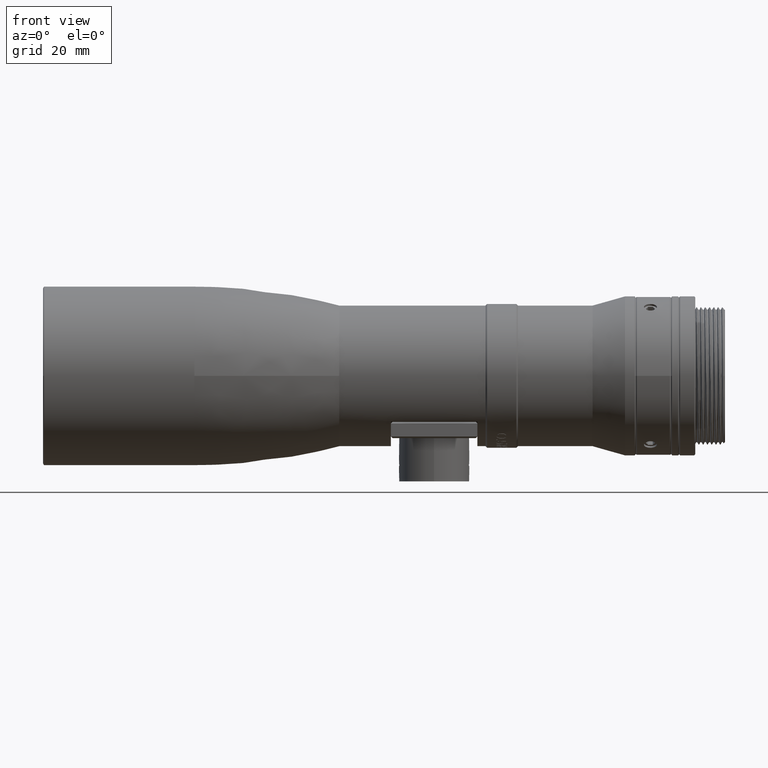
[diagram: clean part render]
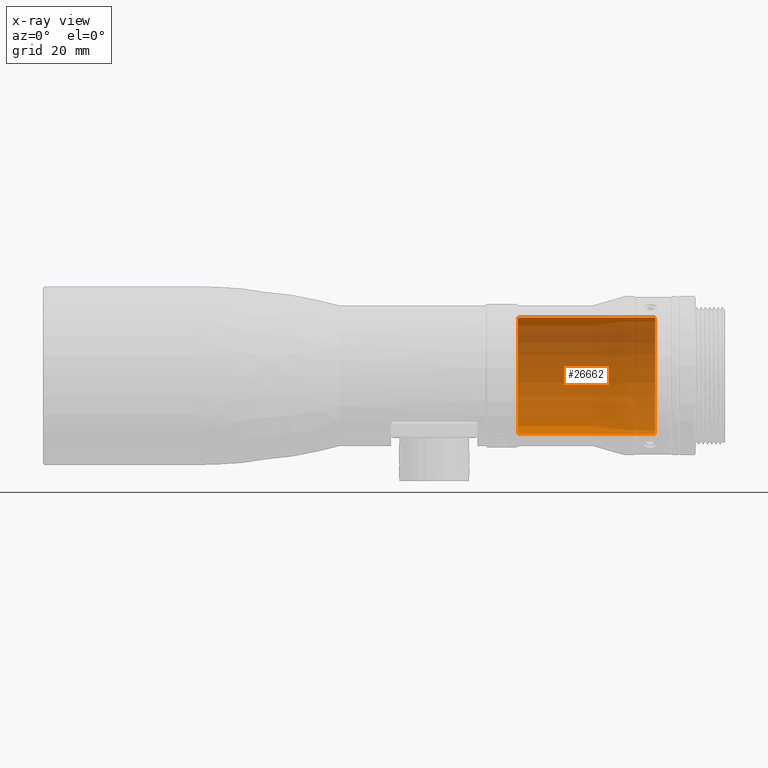
[diagram: x-ray — body ghosted, one internal face saturated and labeled with its STEP entity id]
A machine part, front view, then the same camera in x-ray: the body is ghosted and one INTERNAL B-rep face — a face not visible from any outside direction — is saturated and labeled: STEP entity #26662.
In plain terms, the highlighted cylindrical surface (partial cylindrical patch) has radius 10.7645 mm, axis along (-1, 0, 0).
Its self-contained STEP definition (entity closure, byte-faithful):
#1739 = CARTESIAN_POINT ( 'NONE',  ( 58.39999999999999858, 1.318269109935663841E-15, -10.76448418314158140 ) ) ;
#2456 = CYLINDRICAL_SURFACE ( 'NONE', #26233, 10.76448418314158140 ) ;
#4313 = CIRCLE ( 'NONE', #30398, 10.76448418314158140 ) ;
#5455 = VECTOR ( 'NONE', #11701, 1000.000000000000000 ) ;
#6941 = DIRECTION ( 'NONE',  ( 0.000000000000000000, 0.000000000000000000, -1.000000000000000000 ) ) ;
#7419 = EDGE_CURVE ( 'NONE', #32230, #27471, #4313, .T. ) ;
#7526 = CARTESIAN_POINT ( 'NONE',  ( 58.39999999999999858, 0.000000000000000000, -1.212265595073946043E-48 ) ) ;
#8191 = CIRCLE ( 'NONE', #20194, 10.76448418314158140 ) ;
#8434 = CARTESIAN_POINT ( 'NONE',  ( 33.05000000000000426, 0.000000000000000000, 10.76448418314158140 ) ) ;
#8939 = LINE ( 'NONE', #1739, #5455 ) ;
#9049 = VERTEX_POINT ( 'NONE', #8434 ) ;
#9458 = LINE ( 'NONE', #20075, #24732 ) ;
#10135 = DIRECTION ( 'NONE',  ( -1.000000000000000000, 0.000000000000000000, 0.000000000000000000 ) ) ;
#10502 = EDGE_CURVE ( 'NONE', #32230, #9049, #9458, .T. ) ;
#10629 = CARTESIAN_POINT ( 'NONE',  ( 58.39999999999999858, 0.000000000000000000, -1.212265595073946043E-48 ) ) ;
#10862 = EDGE_CURVE ( 'NONE', #27471, #20935, #8939, .T. ) ;
#11701 = DIRECTION ( 'NONE',  ( -1.000000000000000000, 0.000000000000000000, 0.000000000000000000 ) ) ;
#12055 = DIRECTION ( 'NONE',  ( -1.000000000000000000, 0.000000000000000000, 0.000000000000000000 ) ) ;
#13557 = DIRECTION ( 'NONE',  ( -1.000000000000000000, 0.000000000000000000, 0.000000000000000000 ) ) ;
#15443 = CARTESIAN_POINT ( 'NONE',  ( 33.05000000000000426, 1.318269109935663841E-15, -10.76448418314158140 ) ) ;
#15839 = DIRECTION ( 'NONE',  ( 0.000000000000000000, 0.000000000000000000, 1.000000000000000000 ) ) ;
#16586 = ORIENTED_EDGE ( 'NONE', *, *, #25479, .F. ) ;
#20075 = CARTESIAN_POINT ( 'NONE',  ( 58.39999999999999858, 0.000000000000000000, 10.76448418314158140 ) ) ;
#20194 = AXIS2_PLACEMENT_3D ( 'NONE', #27340, #32107, #6941 ) ;
#20733 = CARTESIAN_POINT ( 'NONE',  ( 58.39999999999999858, 0.000000000000000000, 10.76448418314158140 ) ) ;
#20935 = VERTEX_POINT ( 'NONE', #15443 ) ;
#22536 = DIRECTION ( 'NONE',  ( 0.000000000000000000, 0.000000000000000000, 1.000000000000000000 ) ) ;
#23834 = CARTESIAN_POINT ( 'NONE',  ( 58.39999999999999858, 1.318269109935663841E-15, -10.76448418314158140 ) ) ;
#24092 = ORIENTED_EDGE ( 'NONE', *, *, #10502, .F. ) ;
#24732 = VECTOR ( 'NONE', #12055, 1000.000000000000000 ) ;
#25470 = EDGE_LOOP ( 'NONE', ( #26221, #31331, #16586, #24092 ) ) ;
#25479 = EDGE_CURVE ( 'NONE', #9049, #20935, #8191, .T. ) ;
#26221 = ORIENTED_EDGE ( 'NONE', *, *, #7419, .T. ) ;
#26233 = AXIS2_PLACEMENT_3D ( 'NONE', #7526, #10135, #22536 ) ;
#26662 = ADVANCED_FACE ( 'NONE', ( #27589 ), #2456, .T. ) ;
#27340 = CARTESIAN_POINT ( 'NONE',  ( 33.05000000000000426, 0.000000000000000000, -1.212265595073946043E-48 ) ) ;
#27471 = VERTEX_POINT ( 'NONE', #23834 ) ;
#27589 = FACE_OUTER_BOUND ( 'NONE', #25470, .T. ) ;
#30398 = AXIS2_PLACEMENT_3D ( 'NONE', #10629, #13557, #15839 ) ;
#31331 = ORIENTED_EDGE ( 'NONE', *, *, #10862, .T. ) ;
#32107 = DIRECTION ( 'NONE',  ( -1.000000000000000000, 0.000000000000000000, 0.000000000000000000 ) ) ;
#32230 = VERTEX_POINT ( 'NONE', #20733 ) ;